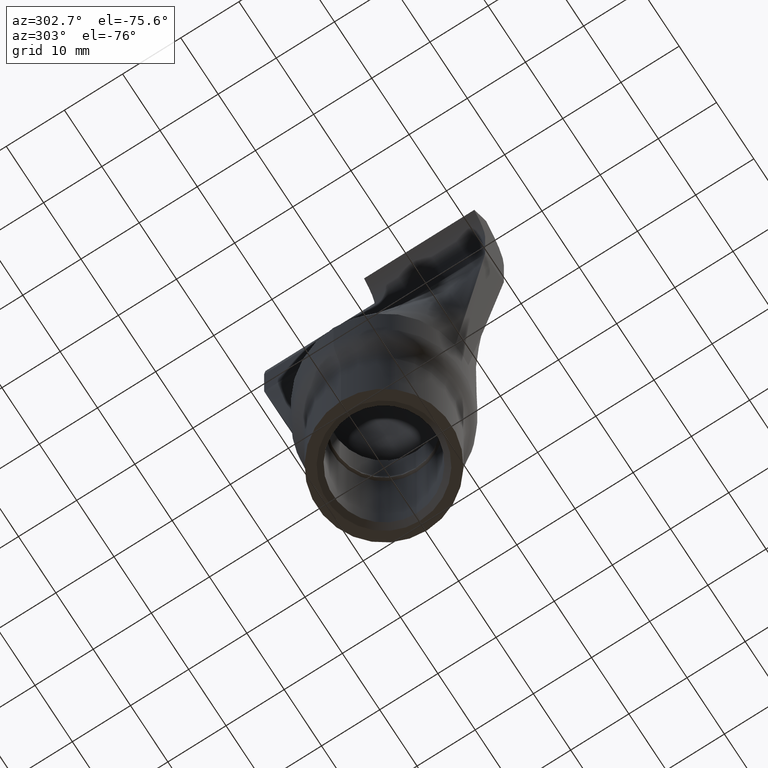
[diagram: clean part render]
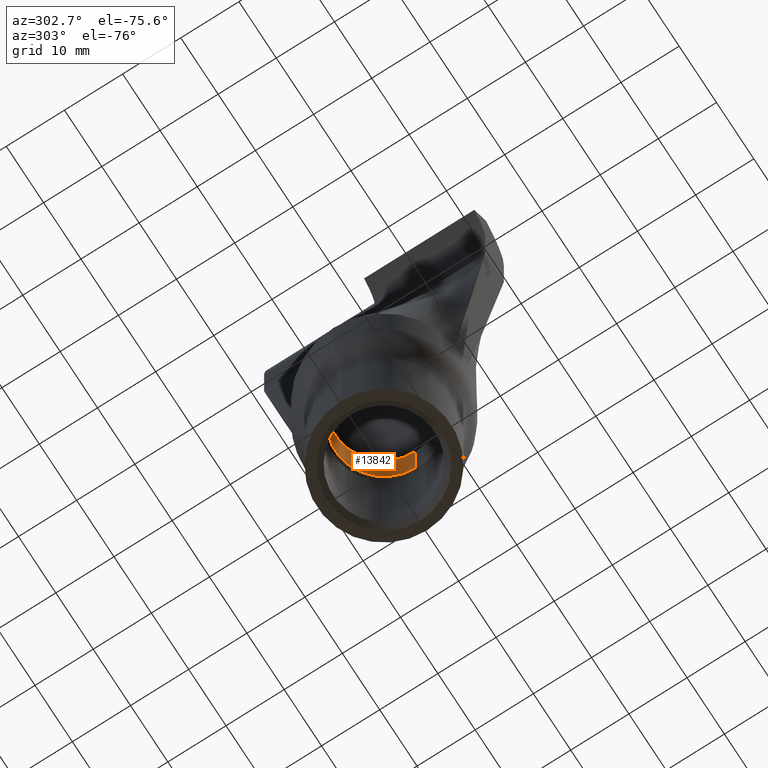
[diagram: same view with one face highlighted and labeled with its STEP entity id]
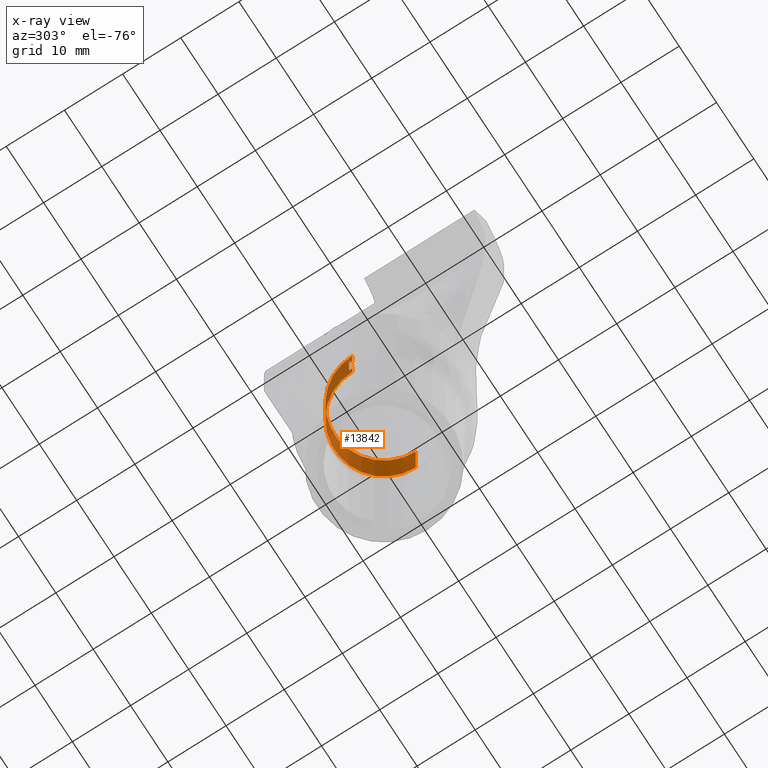
[diagram: x-ray of the same camera — body ghosted, the highlighted face saturated]
A machine part, auxiliary view. The second image highlights one B-rep face of the part: STEP entity #13842.
The next image is the same camera in x-ray: the body ghosted, the highlighted face saturated — about 27% of this face is hidden behind the body in this view.
In plain terms, the highlighted cylindrical surface (partial cylindrical patch) has radius 8.5 mm, axis along (-0, -0, -1).
Its self-contained STEP definition (entity closure, byte-faithful):
#20 = ORIENTED_EDGE ( 'NONE', *, *, #9149, .T. ) ;
#29 = DIRECTION ( 'NONE',  ( -1.000000000000000000, 0.0000000000000000000, 0.0000000000000000000 ) ) ;
#58 = LINE ( 'NONE', #6750, #7797 ) ;
#163 = CARTESIAN_POINT ( 'NONE',  ( -8.479483192157015700, 0.5902243589743589900, 32.19907823039964300 ) ) ;
#172 = CARTESIAN_POINT ( 'NONE',  ( 0.0000000000000000000, 0.0000000000000000000, 29.20661528969452500 ) ) ;
#174 = CARTESIAN_POINT ( 'NONE',  ( -8.479483192157015700, 0.5902243589743591000, 31.45907171998297300 ) ) ;
#215 = CARTESIAN_POINT ( 'NONE',  ( -8.481479456872302000, 0.5608085436698718700, 31.57864303408554500 ) ) ;
#275 = CARTESIAN_POINT ( 'NONE',  ( -8.486479229325372100, 0.4792392828525641200, 31.65909926405348400 ) ) ;
#297 = CARTESIAN_POINT ( 'NONE',  ( -8.499401722457394100, 0.1028478057476401400, 33.28867470588210200 ) ) ;
#315 = CARTESIAN_POINT ( 'NONE',  ( -8.479483192157015700, 0.5902243589743589900, 30.41822887142528100 ) ) ;
#330 = DIRECTION ( 'NONE',  ( 0.0000000000000000000, 0.0000000000000000000, 1.000000000000000000 ) ) ;
#402 = CARTESIAN_POINT ( 'NONE',  ( -8.497210503294940800, 0.2193038818387470200, 33.36365953212720100 ) ) ;
#432 = CARTESIAN_POINT ( 'NONE',  ( -8.480160711533111200, 0.5804140261267916000, 31.53050673908831000 ) ) ;
#437 = CARTESIAN_POINT ( 'NONE',  ( -8.500000000000003600, 6.762779025272351900E-012, 30.50113360573773100 ) ) ;
#445 = CARTESIAN_POINT ( 'NONE',  ( -8.500000000000000000, 0.0000000000000000000, 33.92841016148938800 ) ) ;
#508 = ORIENTED_EDGE ( 'NONE', *, *, #5080, .T. ) ;
#548 = CARTESIAN_POINT ( 'NONE',  ( -8.494191129356002200, 0.3141927083333333500, 30.86534926405348900 ) ) ;
#589 = EDGE_CURVE ( 'NONE', #12116, #2542, #5686, .T. ) ;
#680 = CARTESIAN_POINT ( 'NONE',  ( -8.483015446842321300, 0.5374991792275755100, 32.02600635375140600 ) ) ;
#718 = EDGE_CURVE ( 'NONE', #8975, #13866, #14810, .T. ) ;
#720 = DIRECTION ( 'NONE',  ( 0.0000000000000000000, 0.0000000000000000000, -1.000000000000000000 ) ) ;
#724 = CARTESIAN_POINT ( 'NONE',  ( -8.483687033552374900, 0.5271694365570300800, 29.49916056632813300 ) ) ;
#737 = B_SPLINE_CURVE_WITH_KNOTS ( 'NONE', 3,
 ( #174, #8821, #12756, #14018, #6590, #7364 ),
 .UNSPECIFIED., .F., .F.,
 ( 4, 2, 4 ),
 ( 7.040638946443416900E-018, 0.0001240070741866490700, 0.0002480141483732911000 ),
 .UNSPECIFIED. ) ;
#740 = ORIENTED_EDGE ( 'NONE', *, *, #15878, .T. ) ;
#804 = CARTESIAN_POINT ( 'NONE',  ( -8.494996246430542200, 0.2916140825320512900, 32.50373067430989900 ) ) ;
#808 = CARTESIAN_POINT ( 'NONE',  ( -8.479980198981492000, 0.5832255301945520300, 32.27879910119269600 ) ) ;
#828 = CARTESIAN_POINT ( 'NONE',  ( -8.492197443105327500, 0.3657511347656010000, 29.44196305711543400 ) ) ;
#849 = LINE ( 'NONE', #6390, #2004 ) ;
#860 = CARTESIAN_POINT ( 'NONE',  ( -8.479483192157015700, 0.5902243589743589900, 31.06171970676181700 ) ) ;
#879 = DIRECTION ( 'NONE',  ( -0.0000000000000000000, -0.0000000000000000000, -1.000000000000000000 ) ) ;
#890 = VERTEX_POINT ( 'NONE', #6737 ) ;
#899 = CARTESIAN_POINT ( 'NONE',  ( -8.479483192157015700, 0.5902243589743589900, 28.98591717270734900 ) ) ;
#922 = CARTESIAN_POINT ( 'NONE',  ( 0.0000000000000000000, 0.0000000000000000000, 30.11230439225861500 ) ) ;
#1019 = B_SPLINE_CURVE_WITH_KNOTS ( 'NONE', 3,
 ( #13750, #13967, #402, #10234, #9058, #297, #4065, #7748, #11283, #1658 ),
 .UNSPECIFIED., .F., .F.,
 ( 4, 2, 2, 2, 4 ),
 ( 0.0000000000000000000, 8.292506411967951900E-005, 0.0001658501282393590400, 0.0002487751923590385400, 0.0003317002564787180200 ),
 .UNSPECIFIED. ) ;
#1027 = VERTEX_POINT ( 'NONE', #10640 ) ;
#1046 = VERTEX_POINT ( 'NONE', #3394 ) ;
#1087 = EDGE_CURVE ( 'NONE', #890, #16018, #12921, .T. ) ;
#1119 = VERTEX_POINT ( 'NONE', #6295 ) ;
#1140 = CARTESIAN_POINT ( 'NONE',  ( 0.0000000000000000000, 0.0000000000000000000, 29.87824990507913400 ) ) ;
#1161 = CARTESIAN_POINT ( 'NONE',  ( -8.500000000000000000, -6.670557836684006300E-014, 33.06217110393816900 ) ) ;
#1183 = EDGE_CURVE ( 'NONE', #9605, #13118, #2801, .T. ) ;
#1184 = CARTESIAN_POINT ( 'NONE',  ( -8.485142786397080500, 0.5023463889126006400, 31.64177583249009400 ) ) ;
#1218 = CARTESIAN_POINT ( 'NONE',  ( -8.498677405913380100, 0.1499411558493589600, 32.88025311020734200 ) ) ;
#1240 = CARTESIAN_POINT ( 'NONE',  ( -8.483775554803971300, 0.5255267013534208300, 31.22446369412709500 ) ) ;
#1255 = CARTESIAN_POINT ( 'NONE',  ( -8.494836703831396100, 0.2962252103365384200, 28.76903516148939800 ) ) ;
#1327 = VERTEX_POINT ( 'NONE', #7088 ) ;
#1336 = CARTESIAN_POINT ( 'NONE',  ( -8.487100446449575800, 0.4681089743589743600, 33.85717618713042000 ) ) ;
#1396 = CARTESIAN_POINT ( 'NONE',  ( -8.486844861608497900, 0.4727201021634615500, 30.18353836661759000 ) ) ;
#1418 = ORIENTED_EDGE ( 'NONE', *, *, #3023, .T. ) ;
#1440 = CARTESIAN_POINT ( 'NONE',  ( -8.479483192157015700, 0.5902243589743589900, 30.41822887142528100 ) ) ;
#1566 = AXIS2_PLACEMENT_3D ( 'NONE', #14011, #10164, #6641 ) ;
#1586 = CIRCLE ( 'NONE', #12871, 8.500000000000000000 ) ;
#1590 = CARTESIAN_POINT ( 'NONE',  ( -8.500000000000000000, 7.368416582284240400E-012, 32.28198296471439500 ) ) ;
#1626 = ORIENTED_EDGE ( 'NONE', *, *, #11953, .T. ) ;
#1658 = CARTESIAN_POINT ( 'NONE',  ( -8.499780700595167100, 0.06105769230769231300, 33.15707978288362800 ) ) ;
#1681 = EDGE_CURVE ( 'NONE', #1027, #15162, #8558, .T. ) ;
#1685 = CARTESIAN_POINT ( 'NONE',  ( -8.499723886915157700, 0.07154744612980439000, 33.07086142735017400 ) ) ;
#1725 = CARTESIAN_POINT ( 'NONE',  ( 0.0000000000000000000, 0.0000000000000000000, 33.54171144354067000 ) ) ;
#1732 = CIRCLE ( 'NONE', #12057, 8.500000000000000000 ) ;
#1739 = EDGE_CURVE ( 'NONE', #1119, #890, #12618, .T. ) ;
#1808 = ORIENTED_EDGE ( 'NONE', *, *, #1739, .T. ) ;
#1829 = CARTESIAN_POINT ( 'NONE',  ( -8.500000000000000000, 0.0000000000000000000, 29.27784926405350100 ) ) ;
#1835 = VERTEX_POINT ( 'NONE', #11740 ) ;
#1914 = CARTESIAN_POINT ( 'NONE',  ( -8.485108901248310100, 0.5042416298607869100, 31.99275594139879100 ) ) ;
#1965 = ORIENTED_EDGE ( 'NONE', *, *, #6092, .T. ) ;
#1988 = VECTOR ( 'NONE', #7803, 1000.000000000000000 ) ;
#2004 = VECTOR ( 'NONE', #5205, 1000.000000000000000 ) ;
#2018 = CARTESIAN_POINT ( 'NONE',  ( 0.0000000000000000000, 0.0000000000000000000, 33.85717618713042000 ) ) ;
#2036 = DIRECTION ( 'NONE',  ( -0.0000000000000000000, -0.0000000000000000000, -1.000000000000000000 ) ) ;
#2039 = EDGE_CURVE ( 'NONE', #13797, #4972, #7162, .T. ) ;
#2076 = CARTESIAN_POINT ( 'NONE',  ( -8.492197443105334600, 0.3657511347656026700, 28.77032844173084000 ) ) ;
#2084 = ORIENTED_EDGE ( 'NONE', *, *, #3260, .T. ) ;
#2087 = EDGE_CURVE ( 'NONE', #9771, #11184, #4733, .T. ) ;
#2103 = DIRECTION ( 'NONE',  ( -0.0000000000000000000, -0.0000000000000000000, -1.000000000000000000 ) ) ;
#2169 = DIRECTION ( 'NONE',  ( 0.0000000000000000000, 0.0000000000000000000, 1.000000000000000000 ) ) ;
#2181 = CARTESIAN_POINT ( 'NONE',  ( -8.492503519309829900, 0.3584017388368203600, 33.43450192779323500 ) ) ;
#2196 = VERTEX_POINT ( 'NONE', #275 ) ;
#2201 = VECTOR ( 'NONE', #5503, 1000.000000000000000 ) ;
#2210 = DIRECTION ( 'NONE',  ( -1.000000000000000000, 0.0000000000000000000, 0.0000000000000000000 ) ) ;
#2218 = CARTESIAN_POINT ( 'NONE',  ( -8.484684339450360800, 0.5112472549043135500, 32.94140065515957600 ) ) ;
#2232 = ORIENTED_EDGE ( 'NONE', *, *, #718, .T. ) ;
#2234 = CARTESIAN_POINT ( 'NONE',  ( -8.480185388802407700, 0.5800480769230769200, 29.27784926405350100 ) ) ;
#2318 = CARTESIAN_POINT ( 'NONE',  ( -8.484696443628051200, 0.5098855734483831400, 31.63577454348882900 ) ) ;
#2325 = CARTESIAN_POINT ( 'NONE',  ( -8.480179459419845900, 0.5804816498223890300, 29.74431209384213300 ) ) ;
#2328 = CIRCLE ( 'NONE', #4481, 8.500000000000000000 ) ;
#2346 = VERTEX_POINT ( 'NONE', #6251 ) ;
#2407 = B_SPLINE_CURVE_WITH_KNOTS ( 'NONE', 3,
 ( #9640, #14558, #7149, #15985, #3479, #13479, #12134, #9684 ),
 .UNSPECIFIED., .F., .F.,
 ( 4, 2, 2, 4 ),
 ( 8.124888423650991900E-005, 0.0002770326821290870200, 0.0003749245810753818800, 0.0004728164800216767900 ),
 .UNSPECIFIED. ) ;
#2502 = CARTESIAN_POINT ( 'NONE',  ( -8.480185388802407700, 0.5800480769230769200, 36.00000000000000700 ) ) ;
#2517 = CARTESIAN_POINT ( 'NONE',  ( -8.485991252030348900, 0.4893840863557879000, 31.25270509874510000 ) ) ;
#2542 = VERTEX_POINT ( 'NONE', #8212 ) ;
#2547 = VECTOR ( 'NONE', #9999, 1000.000000000000000 ) ;
#2614 = DIRECTION ( 'NONE',  ( 0.0000000000000000000, 0.0000000000000000000, 1.000000000000000000 ) ) ;
#2654 = DIRECTION ( 'NONE',  ( -0.0000000000000000000, -0.0000000000000000000, -1.000000000000000000 ) ) ;
#2670 = CARTESIAN_POINT ( 'NONE',  ( -8.500000000000000000, 0.0000000000000000000, 36.00000000000000700 ) ) ;
#2718 = DIRECTION ( 'NONE',  ( 1.000000000000000000, 0.0000000000000000000, 0.0000000000000000000 ) ) ;
#2727 = EDGE_CURVE ( 'NONE', #11184, #15216, #13801, .T. ) ;
#2728 = VERTEX_POINT ( 'NONE', #13400 ) ;
#2734 = EDGE_CURVE ( 'NONE', #15627, #9006, #13242, .T. ) ;
#2740 = CARTESIAN_POINT ( 'NONE',  ( -8.479570877972568300, 0.5889646170001979800, 30.37249193316276300 ) ) ;
#2749 = CARTESIAN_POINT ( 'NONE',  ( 0.0000000000000000000, 0.0000000000000000000, 31.65909926405348400 ) ) ;
#2764 = VERTEX_POINT ( 'NONE', #10858 ) ;
#2801 = LINE ( 'NONE', #14789, #12100 ) ;
#2807 = CARTESIAN_POINT ( 'NONE',  ( -8.500000000000000000, 0.0000000000000000000, 36.00000000000000700 ) ) ;
#2818 = CARTESIAN_POINT ( 'NONE',  ( -8.487100446449575800, 0.4681089743589743600, 36.00000000000000700 ) ) ;
#2902 = EDGE_CURVE ( 'NONE', #14427, #6914, #11947, .T. ) ;
#2920 = AXIS2_PLACEMENT_3D ( 'NONE', #3864, #8894, #7540 ) ;
#2956 = CARTESIAN_POINT ( 'NONE',  ( -8.480185388802407700, 0.5800480769230769200, 31.73033323841245600 ) ) ;
#2958 = EDGE_CURVE ( 'NONE', #9571, #9279, #10909, .T. ) ;
#2973 = CARTESIAN_POINT ( 'NONE',  ( -8.486825607437223700, 0.4738938993073687500, 30.88389362358405100 ) ) ;
#3023 = EDGE_CURVE ( 'NONE', #6892, #9227, #5481, .T. ) ;
#3030 = CARTESIAN_POINT ( 'NONE',  ( -8.479483192157015700, 0.5902243589743589900, 31.06171970676181700 ) ) ;
#3031 = DIRECTION ( 'NONE',  ( 1.000000000000000000, 0.0000000000000000000, 0.0000000000000000000 ) ) ;
#3084 = DIRECTION ( 'NONE',  ( 0.0000000000000000000, 0.0000000000000000000, 1.000000000000000000 ) ) ;
#3161 = CARTESIAN_POINT ( 'NONE',  ( -8.493623146068744100, 0.3310263503638490300, 28.76913747179567000 ) ) ;
#3179 = VERTEX_POINT ( 'NONE', #7487 ) ;
#3255 = CARTESIAN_POINT ( 'NONE',  ( -8.462857728775784200, 0.7937499999999999600, 33.92841016148938800 ) ) ;
#3260 = EDGE_CURVE ( 'NONE', #13911, #3436, #12254, .T. ) ;
#3261 = DIRECTION ( 'NONE',  ( 0.0000000000000000000, 0.0000000000000000000, 1.000000000000000000 ) ) ;
#3272 = EDGE_CURVE ( 'NONE', #14296, #5337, #849, .T. ) ;
#3303 = CARTESIAN_POINT ( 'NONE',  ( -8.482691349306213300, 0.5425221017701253900, 32.97514874209599600 ) ) ;
#3314 = DIRECTION ( 'NONE',  ( 0.0000000000000000000, 0.0000000000000000000, -1.000000000000000000 ) ) ;
#3362 = CARTESIAN_POINT ( 'NONE',  ( -8.484803697663432200, 0.5091642619713417900, 29.85120586690009500 ) ) ;
#3375 = CARTESIAN_POINT ( 'NONE',  ( -8.500000000000000000, 0.0000000000000000000, 36.00000000000000700 ) ) ;
#3394 = CARTESIAN_POINT ( 'NONE',  ( -8.494996246430542200, 0.2916140825320512900, 30.72288131533553500 ) ) ;
#3436 = VERTEX_POINT ( 'NONE', #3472 ) ;
#3472 = CARTESIAN_POINT ( 'NONE',  ( -8.491199214571333100, 0.3866987179487179600, 33.54171144354067000 ) ) ;
#3479 = CARTESIAN_POINT ( 'NONE',  ( -8.498487702088645800, 0.1632994673914983700, 32.47849910441671300 ) ) ;
#3522 = CIRCLE ( 'NONE', #2920, 8.500000000000000000 ) ;
#3556 = VERTEX_POINT ( 'NONE', #7414 ) ;
#3570 = CARTESIAN_POINT ( 'NONE',  ( -8.482825508968099700, 0.5404387052635358800, 29.82030833191061000 ) ) ;
#3580 = B_SPLINE_CURVE_WITH_KNOTS ( 'NONE', 3,
 ( #7186, #12015, #9466, #3303, #2218, #12066 ),
 .UNSPECIFIED., .F., .F.,
 ( 4, 2, 4 ),
 ( 0.0000000000000000000, 0.0001352376568395545600, 0.0002704753136791091100 ),
 .UNSPECIFIED. ) ;
#3772 = CARTESIAN_POINT ( 'NONE',  ( -8.479715661751731300, 0.5869149535435074200, 31.10652028828628300 ) ) ;
#3782 = VECTOR ( 'NONE', #7770, 1000.000000000000000 ) ;
#3826 = CARTESIAN_POINT ( 'NONE',  ( -8.479483192157015700, 0.5902243589743589900, 31.06171970676181700 ) ) ;
#3835 = ORIENTED_EDGE ( 'NONE', *, *, #14251, .T. ) ;
#3854 = EDGE_CURVE ( 'NONE', #11377, #10367, #58, .T. ) ;
#3861 = CARTESIAN_POINT ( 'NONE',  ( -8.481947204133041000, 0.5538843024392459100, 30.57057832697389400 ) ) ;
#3864 = CARTESIAN_POINT ( 'NONE',  ( 0.0000000000000000000, 0.0000000000000000000, 30.86534926405348500 ) ) ;
#3867 = VERTEX_POINT ( 'NONE', #4327 ) ;
#3912 = CIRCLE ( 'NONE', #9833, 8.500000000000000000 ) ;
#3923 = LINE ( 'NONE', #2818, #12239 ) ;
#3937 = CARTESIAN_POINT ( 'NONE',  ( -8.500000000000000000, 0.0000000000000000000, 36.00000000000000700 ) ) ;
#3961 = CARTESIAN_POINT ( 'NONE',  ( -8.500000000000000000, 0.0000000000000000000, 36.00000000000000700 ) ) ;
#3965 = CARTESIAN_POINT ( 'NONE',  ( -8.486705837198366400, 0.4760103826608398900, 30.66092561982248600 ) ) ;
#3985 = CARTESIAN_POINT ( 'NONE',  ( -8.482744082052946100, 0.5417079164769170700, 30.24492812678851200 ) ) ;
#4019 = EDGE_CURVE ( 'NONE', #2196, #1027, #14601, .T. ) ;
#4038 = CARTESIAN_POINT ( 'NONE',  ( -8.486844861608497900, 0.4727201021634615500, 30.18353836661759000 ) ) ;
#4052 = CARTESIAN_POINT ( 'NONE',  ( 0.0000000000000000000, 0.0000000000000000000, 29.94948387943810500 ) ) ;
#4065 = CARTESIAN_POINT ( 'NONE',  ( -8.499564559658692200, 0.08667085488881323700, 33.26524903485159300 ) ) ;
#4074 = ORIENTED_EDGE ( 'NONE', *, *, #4684, .T. ) ;
#4105 = DIRECTION ( 'NONE',  ( 0.0000000000000000000, 0.0000000000000000000, 1.000000000000000000 ) ) ;
#4113 = CARTESIAN_POINT ( 'NONE',  ( -8.495558083713730100, 0.2747596153846154100, 32.84972426405349900 ) ) ;
#4134 = AXIS2_PLACEMENT_3D ( 'NONE', #1725, #6844, #8090 ) ;
#4156 = CARTESIAN_POINT ( 'NONE',  ( -8.479990857134810200, 0.5828851198220028600, 31.52039099440007800 ) ) ;
#4215 = CARTESIAN_POINT ( 'NONE',  ( -8.488551687240583700, 0.4421579804108304900, 30.87571623848014100 ) ) ;
#4236 = CARTESIAN_POINT ( 'NONE',  ( -8.479579454560934000, 0.5888414010810995000, 32.15299704278955100 ) ) ;
#4244 = LINE ( 'NONE', #12071, #7330 ) ;
#4266 = CARTESIAN_POINT ( 'NONE',  ( -8.479567625963389000, 0.5890113371275062000, 31.02955579360424200 ) ) ;
#4312 = VERTEX_POINT ( 'NONE', #1829 ) ;
#4327 = CARTESIAN_POINT ( 'NONE',  ( -8.480185388802407700, 0.5800480769230769200, 29.87824990507913400 ) ) ;
#4451 = AXIS2_PLACEMENT_3D ( 'NONE', #15807, #13458, #2210 ) ;
#4481 = AXIS2_PLACEMENT_3D ( 'NONE', #4052, #12697, #7684 ) ;
#4503 = EDGE_CURVE ( 'NONE', #6778, #7940, #10837, .T. ) ;
#4508 = LINE ( 'NONE', #13650, #1988 ) ;
#4517 = FACE_OUTER_BOUND ( 'NONE', #14377, .T. ) ;
#4550 = VERTEX_POINT ( 'NONE', #1336 ) ;
#4563 = CARTESIAN_POINT ( 'NONE',  ( -8.480185388802407700, 0.5800480769230769200, 29.20661528969452500 ) ) ;
#4580 = ORIENTED_EDGE ( 'NONE', *, *, #4627, .T. ) ;
#4617 = EDGE_CURVE ( 'NONE', #7325, #1835, #4508, .T. ) ;
#4624 = CARTESIAN_POINT ( 'NONE',  ( -8.486658214110580200, 0.4760591947115384600, 32.91284901365286000 ) ) ;
#4627 = EDGE_CURVE ( 'NONE', #8566, #11757, #11081, .T. ) ;
#4645 = EDGE_CURVE ( 'NONE', #2728, #1119, #1019, .T. ) ;
#4666 = DIRECTION ( 'NONE',  ( -0.0000000000000000000, -0.0000000000000000000, -1.000000000000000000 ) ) ;
#4684 = EDGE_CURVE ( 'NONE', #1046, #5145, #6075, .T. ) ;
#4693 = CARTESIAN_POINT ( 'NONE',  ( -8.486705837198366400, 0.4760103826608607100, 32.44177497879682200 ) ) ;
#4733 = CIRCLE ( 'NONE', #14585, 8.500000000000000000 ) ;
#4746 = ORIENTED_EDGE ( 'NONE', *, *, #6271, .T. ) ;
#4748 = DIRECTION ( 'NONE',  ( 1.000000000000000000, 0.0000000000000000000, 0.0000000000000000000 ) ) ;
#4808 = CARTESIAN_POINT ( 'NONE',  ( -8.479483192157015700, 0.5902243589743589900, 29.65755178809195400 ) ) ;
#4824 = EDGE_CURVE ( 'NONE', #4312, #15627, #5444, .T. ) ;
#4847 = CARTESIAN_POINT ( 'NONE',  ( -8.487100446449575800, 0.4681089743589743600, 33.54171144354067000 ) ) ;
#4905 = CARTESIAN_POINT ( 'NONE',  ( -8.483827146686817100, 0.5240963128470661500, 31.62273125698743900 ) ) ;
#4938 = EDGE_CURVE ( 'NONE', #4972, #5157, #6964, .T. ) ;
#4965 = ORIENTED_EDGE ( 'NONE', *, *, #5971, .T. ) ;
#4972 = VERTEX_POINT ( 'NONE', #899 ) ;
#4976 = DIRECTION ( 'NONE',  ( 1.000000000000000000, 0.0000000000000000000, 0.0000000000000000000 ) ) ;
#4992 = CARTESIAN_POINT ( 'NONE',  ( -8.500000000000000000, 4.846739782485406800E-012, 33.23292927816191900 ) ) ;
#5071 = DIRECTION ( 'NONE',  ( 1.000000000000000000, 0.0000000000000000000, 0.0000000000000000000 ) ) ;
#5078 = DIRECTION ( 'NONE',  ( 1.000000000000000000, 0.0000000000000000000, 0.0000000000000000000 ) ) ;
#5080 = EDGE_CURVE ( 'NONE', #9227, #11377, #15701, .T. ) ;
#5081 = CARTESIAN_POINT ( 'NONE',  ( 0.0000000000000000000, 0.0000000000000000000, 28.76903516148939800 ) ) ;
#5098 = CARTESIAN_POINT ( 'NONE',  ( -8.479980198981490200, 0.5832255301945423700, 30.49794974221835300 ) ) ;
#5127 = EDGE_CURVE ( 'NONE', #2764, #4312, #9517, .T. ) ;
#5145 = VERTEX_POINT ( 'NONE', #7519 ) ;
#5157 = VERTEX_POINT ( 'NONE', #1255 ) ;
#5183 = DIRECTION ( 'NONE',  ( -1.000000000000000000, 0.0000000000000000000, 0.0000000000000000000 ) ) ;
#5186 = CARTESIAN_POINT ( 'NONE',  ( -8.480626974015086400, 0.5735556883230006300, 31.55020253695830900 ) ) ;
#5205 = DIRECTION ( 'NONE',  ( -0.0000000000000000000, -0.0000000000000000000, -1.000000000000000000 ) ) ;
#5235 = CARTESIAN_POINT ( 'NONE',  ( 8.500000000000000000, 1.040949779275250100E-015, 36.00000000000000700 ) ) ;
#5239 = ORIENTED_EDGE ( 'NONE', *, *, #5818, .T. ) ;
#5254 = CARTESIAN_POINT ( 'NONE',  ( -8.486693867619592900, 0.4754231770833333100, 29.20661528969452500 ) ) ;
#5292 = CARTESIAN_POINT ( 'NONE',  ( -8.494996246430542200, 0.2916140825320512900, 30.72288131533553500 ) ) ;
#5300 = CARTESIAN_POINT ( 'NONE',  ( -8.479483192157015700, 0.5902243589743589900, 33.14642648761118700 ) ) ;
#5335 = EDGE_CURVE ( 'NONE', #5584, #4550, #15319, .T. ) ;
#5337 = VERTEX_POINT ( 'NONE', #8000 ) ;
#5348 = CARTESIAN_POINT ( 'NONE',  ( -8.470098706018868400, 0.7123397435897436100, 36.00000000000000700 ) ) ;
#5391 = CARTESIAN_POINT ( 'NONE',  ( -8.482028194910345300, 0.5526581910958345800, 30.94085136500276800 ) ) ;
#5444 = CIRCLE ( 'NONE', #10245, 8.500000000000000000 ) ;
#5467 = CARTESIAN_POINT ( 'NONE',  ( -8.480179459419840500, 0.5804816498223901400, 29.07267747845751400 ) ) ;
#5472 = VECTOR ( 'NONE', #11470, 1000.000000000000000 ) ;
#5481 = LINE ( 'NONE', #10432, #2201 ) ;
#5503 = DIRECTION ( 'NONE',  ( -0.0000000000000000000, -0.0000000000000000000, -1.000000000000000000 ) ) ;
#5514 = CARTESIAN_POINT ( 'NONE',  ( -8.494397136859058500, 0.3106560531570589600, 32.85081331555407000 ) ) ;
#5584 = VERTEX_POINT ( 'NONE', #11711 ) ;
#5615 = DIRECTION ( 'NONE',  ( -0.0000000000000000000, -0.0000000000000000000, -1.000000000000000000 ) ) ;
#5623 = CARTESIAN_POINT ( 'NONE',  ( -8.479483192157015700, 0.5902243589743589900, 29.65755178809195400 ) ) ;
#5633 = CARTESIAN_POINT ( 'NONE',  ( -8.494836703831396100, 0.2962252103365384200, 28.76903516148939800 ) ) ;
#5660 = VECTOR ( 'NONE', #11496, 1000.000000000000000 ) ;
#5664 = CIRCLE ( 'NONE', #1566, 8.500000000000000000 ) ;
#5686 = B_SPLINE_CURVE_WITH_KNOTS ( 'NONE', 3,
 ( #7905, #6589, #12753, #9155, #5514, #4113 ),
 .UNSPECIFIED., .F., .F.,
 ( 4, 2, 4 ),
 ( 0.0000000000000000000, 0.0001076988321503867600, 0.0002153976643007735300 ),
 .UNSPECIFIED. ) ;
#5718 = CARTESIAN_POINT ( 'NONE',  ( -8.493634513331347300, 0.3312826659756997700, 32.50261282770821200 ) ) ;
#5738 = CARTESIAN_POINT ( 'NONE',  ( -8.494836703831396100, 0.2962252103365384200, 29.44066977687400700 ) ) ;
#5749 = CARTESIAN_POINT ( 'NONE',  ( -8.483687033552364200, 0.5271694365570480700, 28.82752595094356400 ) ) ;
#5770 = CARTESIAN_POINT ( 'NONE',  ( -8.488500362509308100, 0.4434953891649560700, 32.46522750392826100 ) ) ;
#5776 = EDGE_CURVE ( 'NONE', #7940, #8178, #15092, .T. ) ;
#5778 = B_SPLINE_CURVE_WITH_KNOTS ( 'NONE', 3,
 ( #315, #2740, #6515, #3985, #11411, #4038 ),
 .UNSPECIFIED., .F., .F.,
 ( 4, 2, 4 ),
 ( 0.0000000000000000000, 0.0001369057803791750100, 0.0002738115607583500200 ),
 .UNSPECIFIED. ) ;
#5780 = CARTESIAN_POINT ( 'NONE',  ( -8.480185388802407700, 0.5800480769230769200, 36.00000000000000700 ) ) ;
#5793 = CARTESIAN_POINT ( 'NONE',  ( -8.488947092388954700, 0.4347051505194595700, 29.45205713151965200 ) ) ;
#5818 = EDGE_CURVE ( 'NONE', #10367, #14379, #2407, .T. ) ;
#5871 = ORIENTED_EDGE ( 'NONE', *, *, #7411, .T. ) ;
#5874 = CARTESIAN_POINT ( 'NONE',  ( -8.500000000000000000, 0.0000000000000000000, 26.71779788708134600 ) ) ;
#5886 = ORIENTED_EDGE ( 'NONE', *, *, #589, .T. ) ;
#5898 = DIRECTION ( 'NONE',  ( -1.000000000000000000, 0.0000000000000000000, 0.0000000000000000000 ) ) ;
#5956 = ORIENTED_EDGE ( 'NONE', *, *, #1087, .T. ) ;
#5962 = ORIENTED_EDGE ( 'NONE', *, *, #12467, .T. ) ;
#5971 = EDGE_CURVE ( 'NONE', #5157, #10943, #10110, .T. ) ;
#5996 = CARTESIAN_POINT ( 'NONE',  ( -8.486039581495893100, 0.4870246675373933700, 31.65343675413532400 ) ) ;
#6062 = EDGE_CURVE ( 'NONE', #1327, #5584, #9350, .T. ) ;
#6075 = B_SPLINE_CURVE_WITH_KNOTS ( 'NONE', 3,
 ( #7703, #8943, #11341, #8841, #3965, #14997, #3861, #5098, #7593, #1440 ),
 .UNSPECIFIED., .F., .F.,
 ( 4, 2, 2, 2, 4 ),
 ( 0.0000000000000000000, 0.0001179419498632520600, 0.0002358838997265041200, 0.0003538258495897561800, 0.0004717677994530082400 ),
 .UNSPECIFIED. ) ;
#6078 = VERTEX_POINT ( 'NONE', #11427 ) ;
#6084 = CARTESIAN_POINT ( 'NONE',  ( -8.499989443516906100, 0.02936300419497676900, 32.98585731960409400 ) ) ;
#6089 = CARTESIAN_POINT ( 'NONE',  ( -8.498967599328764800, 0.1350009910133241900, 33.40195735217355400 ) ) ;
#6092 = EDGE_CURVE ( 'NONE', #13038, #6892, #5664, .T. ) ;
#6100 = ORIENTED_EDGE ( 'NONE', *, *, #5776, .T. ) ;
#6105 = AXIS2_PLACEMENT_3D ( 'NONE', #172, #330, #5078 ) ;
#6171 = CARTESIAN_POINT ( 'NONE',  ( -8.488072375472446800, 0.4501414763621794900, 31.27446760339643100 ) ) ;
#6199 = AXIS2_PLACEMENT_3D ( 'NONE', #13747, #2614, #2718 ) ;
#6251 = CARTESIAN_POINT ( 'NONE',  ( -8.480185388802407700, 0.5800480769230769200, 29.94948387943810500 ) ) ;
#6271 = EDGE_CURVE ( 'NONE', #4550, #13911, #3923, .T. ) ;
#6295 = CARTESIAN_POINT ( 'NONE',  ( -8.499780700595167100, 0.06105769230769231300, 33.15707978288362800 ) ) ;
#6320 = ORIENTED_EDGE ( 'NONE', *, *, #1681, .T. ) ;
#6380 = EDGE_CURVE ( 'NONE', #2542, #2728, #7763, .T. ) ;
#6388 = VERTEX_POINT ( 'NONE', #5300 ) ;
#6390 = CARTESIAN_POINT ( 'NONE',  ( -8.480185388802407700, 0.5800480769230769200, 36.00000000000000700 ) ) ;
#6423 = DIRECTION ( 'NONE',  ( 0.0000000000000000000, 0.0000000000000000000, 1.000000000000000000 ) ) ;
#6445 = AXIS2_PLACEMENT_3D ( 'NONE', #8384, #2169, #5898 ) ;
#6447 = VERTEX_POINT ( 'NONE', #445 ) ;
#6464 = CARTESIAN_POINT ( 'NONE',  ( -8.479483192157015700, 0.5902243589743589900, 33.14642648761118700 ) ) ;
#6477 = CARTESIAN_POINT ( 'NONE',  ( -8.481183291630360400, 0.5652876469997306600, 31.56926974119644300 ) ) ;
#6515 = CARTESIAN_POINT ( 'NONE',  ( -8.480119392051356900, 0.5813516362173504200, 30.32657076100071000 ) ) ;
#6540 = CIRCLE ( 'NONE', #13096, 8.500000000000000000 ) ;
#6575 = CARTESIAN_POINT ( 'NONE',  ( -8.480882653931068700, 0.5697751905678009000, 31.55987989013871700 ) ) ;
#6589 = CARTESIAN_POINT ( 'NONE',  ( -8.488285231355142500, 0.4470545259299468800, 32.89160039056091000 ) ) ;
#6590 = CARTESIAN_POINT ( 'NONE',  ( -8.485987481615298500, 0.4894551830166524700, 31.28862591679105200 ) ) ;
#6641 = DIRECTION ( 'NONE',  ( -1.000000000000000000, 0.0000000000000000000, 0.0000000000000000000 ) ) ;
#6643 = ORIENTED_EDGE ( 'NONE', *, *, #14102, .T. ) ;
#6658 = DIRECTION ( 'NONE',  ( 1.000000000000000000, 0.0000000000000000000, 0.0000000000000000000 ) ) ;
#6692 = CARTESIAN_POINT ( 'NONE',  ( -8.492998722693128500, 0.3464293892929673500, 30.86550621866203100 ) ) ;
#6737 = CARTESIAN_POINT ( 'NONE',  ( -8.498026101624455800, 0.1831730769230769100, 32.94353686421375500 ) ) ;
#6750 = CARTESIAN_POINT ( 'NONE',  ( -8.500000000000000000, 0.0000000000000000000, 36.00000000000000700 ) ) ;
#6778 = VERTEX_POINT ( 'NONE', #10089 ) ;
#6821 = VECTOR ( 'NONE', #4105, 1000.000000000000000 ) ;
#6828 = CARTESIAN_POINT ( 'NONE',  ( -8.480206313372150400, 0.5801356062843481300, 32.10673138225234200 ) ) ;
#6844 = DIRECTION ( 'NONE',  ( 0.0000000000000000000, 0.0000000000000000000, 1.000000000000000000 ) ) ;
#6850 = ORIENTED_EDGE ( 'NONE', *, *, #4824, .T. ) ;
#6852 = EDGE_CURVE ( 'NONE', #5145, #9771, #5778, .T. ) ;
#6866 = DIRECTION ( 'NONE',  ( -0.0000000000000000000, -0.0000000000000000000, -1.000000000000000000 ) ) ;
#6888 = CIRCLE ( 'NONE', #10289, 8.500000000000000000 ) ;
#6892 = VERTEX_POINT ( 'NONE', #10307 ) ;
#6914 = VERTEX_POINT ( 'NONE', #12959 ) ;
#6964 = B_SPLINE_CURVE_WITH_KNOTS ( 'NONE', 3,
 ( #8123, #10726, #15526, #13158, #5749, #9525, #13106, #2076, #3161, #5633 ),
 .UNSPECIFIED., .F., .F.,
 ( 4, 2, 2, 2, 4 ),
 ( 0.0000000000000000000, 0.0001037206820514623000, 0.0002074413641029245900, 0.0003111620461543868700, 0.0004148827282058491800 ),
 .UNSPECIFIED. ) ;
#6973 = CARTESIAN_POINT ( 'NONE',  ( -8.486693867619592900, 0.4754231770833333100, 29.87824990507913400 ) ) ;
#6980 = CARTESIAN_POINT ( 'NONE',  ( -8.500000000000000000, 0.0000000000000000000, 33.85717618713042000 ) ) ;
#7065 = CARTESIAN_POINT ( 'NONE',  ( -8.498264861230756800, 0.1720962014322283400, 32.92244310131730600 ) ) ;
#7086 = EDGE_CURVE ( 'NONE', #15162, #9106, #737, .T. ) ;
#7088 = CARTESIAN_POINT ( 'NONE',  ( -8.470098706018868400, 0.7123397435897436100, 33.54171144354067000 ) ) ;
#7139 = ORIENTED_EDGE ( 'NONE', *, *, #4617, .T. ) ;
#7145 = B_SPLINE_CURVE_WITH_KNOTS ( 'NONE', 3,
 ( #15700, #5718, #14480, #5770, #4693, #10753, #8203, #808, #15746, #9554 ),
 .UNSPECIFIED., .F., .F.,
 ( 4, 2, 2, 2, 4 ),
 ( 0.0000000000000000000, 0.0001179419498632711700, 0.0002358838997265423400, 0.0003538258495898135300, 0.0004717677994530846800 ),
 .UNSPECIFIED. ) ;
#7149 = CARTESIAN_POINT ( 'NONE',  ( -8.499967968613557200, 0.05654038433131335800, 32.40176276560100600 ) ) ;
#7162 = B_SPLINE_CURVE_WITH_KNOTS ( 'NONE', 3,
 ( #5254, #12887, #9000, #5467, #7860, #13908 ),
 .UNSPECIFIED., .F., .F.,
 ( 4, 2, 4 ),
 ( 0.0000000000000000000, 0.0001296211526491669700, 0.0002592423052983339500 ),
 .UNSPECIFIED. ) ;
#7186 = CARTESIAN_POINT ( 'NONE',  ( -8.479483192157015700, 0.5902243589743589900, 33.14642648761118700 ) ) ;
#7228 = CARTESIAN_POINT ( 'NONE',  ( -8.480185388802407700, 0.5800480769230769200, 36.00000000000000700 ) ) ;
#7303 = DIRECTION ( 'NONE',  ( 1.000000000000000000, 0.0000000000000000000, 0.0000000000000000000 ) ) ;
#7322 = CARTESIAN_POINT ( 'NONE',  ( -8.500000000000000000, 0.01016114168622177100, 33.02279611027420000 ) ) ;
#7325 = VERTEX_POINT ( 'NONE', #3255 ) ;
#7330 = VECTOR ( 'NONE', #4666, 1000.000000000000000 ) ;
#7364 = CARTESIAN_POINT ( 'NONE',  ( -8.488072375472446800, 0.4501414763621794900, 31.27446760339643100 ) ) ;
#7386 = VECTOR ( 'NONE', #2036, 1000.000000000000000 ) ;
#7411 = EDGE_CURVE ( 'NONE', #6078, #7634, #9157, .T. ) ;
#7414 = CARTESIAN_POINT ( 'NONE',  ( -8.491199214571333100, 0.3866987179487179600, 33.85717618713042000 ) ) ;
#7440 = CARTESIAN_POINT ( 'NONE',  ( -8.495104815767705400, 0.2884339943910256300, 33.43994862302785300 ) ) ;
#7475 = EDGE_CURVE ( 'NONE', #3867, #6078, #13191, .T. ) ;
#7487 = CARTESIAN_POINT ( 'NONE',  ( -8.500000000000000000, -6.670557836684006300E-014, 33.06217110393816900 ) ) ;
#7489 = CARTESIAN_POINT ( 'NONE',  ( -8.499999999999996400, 0.007906643913468501900, 33.26334215820581600 ) ) ;
#7493 = ORIENTED_EDGE ( 'NONE', *, *, #3854, .T. ) ;
#7496 = ORIENTED_EDGE ( 'NONE', *, *, #7475, .T. ) ;
#7519 = CARTESIAN_POINT ( 'NONE',  ( -8.479483192157015700, 0.5902243589743589900, 30.41822887142528100 ) ) ;
#7540 = DIRECTION ( 'NONE',  ( 1.000000000000000000, 0.0000000000000000000, 0.0000000000000000000 ) ) ;
#7568 = CIRCLE ( 'NONE', #13685, 8.500000000000000000 ) ;
#7593 = CARTESIAN_POINT ( 'NONE',  ( -8.479562570538242000, 0.5890839661064928300, 30.45805084210840600 ) ) ;
#7634 = VERTEX_POINT ( 'NONE', #4808 ) ;
#7653 = CARTESIAN_POINT ( 'NONE',  ( 0.0000000000000000000, 0.0000000000000000000, 33.92841016148938800 ) ) ;
#7684 = DIRECTION ( 'NONE',  ( -1.000000000000000000, 0.0000000000000000000, 0.0000000000000000000 ) ) ;
#7703 = CARTESIAN_POINT ( 'NONE',  ( -8.494996246430542200, 0.2916140825320512900, 30.72288131533553500 ) ) ;
#7717 = EDGE_CURVE ( 'NONE', #13866, #14296, #7568, .T. ) ;
#7730 = CARTESIAN_POINT ( 'NONE',  ( -8.500000000000003600, 6.762779025272351900E-012, 30.50113360573773100 ) ) ;
#7748 = CARTESIAN_POINT ( 'NONE',  ( -8.499752224635273000, 0.06573933906688944600, 33.21336728931246500 ) ) ;
#7761 = CARTESIAN_POINT ( 'NONE',  ( -8.480066927438056000, 0.5820699186815302400, 33.23393384573623900 ) ) ;
#7763 = LINE ( 'NONE', #10115, #14179 ) ;
#7770 = DIRECTION ( 'NONE',  ( -0.0000000000000000000, -0.0000000000000000000, -1.000000000000000000 ) ) ;
#7797 = VECTOR ( 'NONE', #6866, 1000.000000000000000 ) ;
#7803 = DIRECTION ( 'NONE',  ( -0.0000000000000000000, -0.0000000000000000000, -1.000000000000000000 ) ) ;
#7822 = CARTESIAN_POINT ( 'NONE',  ( -8.482514160824592900, 0.5452467289887309400, 33.31231353034230800 ) ) ;
#7831 = ORIENTED_EDGE ( 'NONE', *, *, #2902, .T. ) ;
#7855 = ORIENTED_EDGE ( 'NONE', *, *, #15283, .T. ) ;
#7860 = CARTESIAN_POINT ( 'NONE',  ( -8.479580932071218800, 0.5888201743671155300, 29.02938457970159500 ) ) ;
#7862 = DIRECTION ( 'NONE',  ( 0.0000000000000000000, 0.0000000000000000000, -1.000000000000000000 ) ) ;
#7905 = CARTESIAN_POINT ( 'NONE',  ( -8.486658214110580200, 0.4760591947115384600, 32.91284901365286000 ) ) ;
#7927 = VECTOR ( 'NONE', #10174, 1000.000000000000000 ) ;
#7940 = VERTEX_POINT ( 'NONE', #9295 ) ;
#7989 = ORIENTED_EDGE ( 'NONE', *, *, #14041, .T. ) ;
#8000 = CARTESIAN_POINT ( 'NONE',  ( -8.480185388802407700, 0.5800480769230769200, 31.65909926405348400 ) ) ;
#8072 = DIRECTION ( 'NONE',  ( -1.000000000000000000, 0.0000000000000000000, 0.0000000000000000000 ) ) ;
#8090 = DIRECTION ( 'NONE',  ( 1.000000000000000000, 0.0000000000000000000, 0.0000000000000000000 ) ) ;
#8109 = CIRCLE ( 'NONE', #15454, 8.500000000000000000 ) ;
#8123 = CARTESIAN_POINT ( 'NONE',  ( -8.479483192157015700, 0.5902243589743589900, 28.98591717270734900 ) ) ;
#8178 = VERTEX_POINT ( 'NONE', #8629 ) ;
#8203 = CARTESIAN_POINT ( 'NONE',  ( -8.481947204133039300, 0.5538843024392456900, 32.35142768594823800 ) ) ;
#8204 = CARTESIAN_POINT ( 'NONE',  ( -8.498677405913380100, 0.1499411558493589600, 32.88025311020734200 ) ) ;
#8212 = CARTESIAN_POINT ( 'NONE',  ( -8.495558083713730100, 0.2747596153846154100, 32.84972426405349900 ) ) ;
#8242 = DIRECTION ( 'NONE',  ( -0.0000000000000000000, -0.0000000000000000000, -1.000000000000000000 ) ) ;
#8325 = ORIENTED_EDGE ( 'NONE', *, *, #15234, .T. ) ;
#8352 = VERTEX_POINT ( 'NONE', #12398 ) ;
#8384 = CARTESIAN_POINT ( 'NONE',  ( 0.0000000000000000000, 0.0000000000000000000, 26.71779788708134600 ) ) ;
#8422 = CARTESIAN_POINT ( 'NONE',  ( 0.0000000000000000000, 0.0000000000000000000, 36.00000000000000700 ) ) ;
#8445 = CARTESIAN_POINT ( 'NONE',  ( 0.0000000000000000000, 0.0000000000000000000, 32.64619862302785700 ) ) ;
#8481 = CARTESIAN_POINT ( 'NONE',  ( -8.482974376390771500, 0.5379005614367411400, 31.60950035682754600 ) ) ;
#8551 = CARTESIAN_POINT ( 'NONE',  ( -8.479572648734853500, 0.5889391772690290000, 29.62269697261832100 ) ) ;
#8558 = B_SPLINE_CURVE_WITH_KNOTS ( 'NONE', 3,
 ( #215, #6477, #6575, #5186, #12693, #432, #4156, #15130, #11528, #13841 ),
 .UNSPECIFIED., .F., .F.,
 ( 4, 3, 3, 4 ),
 ( 7.410741937918042400E-018, 3.117817025858605700E-005, 6.245937455627861800E-005, 0.0001246190267387575500 ),
 .UNSPECIFIED. ) ;
#8566 = VERTEX_POINT ( 'NONE', #14244 ) ;
#8568 = CIRCLE ( 'NONE', #4134, 8.500000000000000000 ) ;
#8589 = CARTESIAN_POINT ( 'NONE',  ( -8.486479229325372100, 0.4792392828525641200, 31.65909926405348400 ) ) ;
#8624 = CARTESIAN_POINT ( 'NONE',  ( -8.496191888543016500, 0.2564169736923560000, 33.43903761305311700 ) ) ;
#8629 = CARTESIAN_POINT ( 'NONE',  ( -8.486317120906141700, 0.4821013621794871800, 33.37316677206632000 ) ) ;
#8729 = AXIS2_PLACEMENT_3D ( 'NONE', #13174, #9543, #10844 ) ;
#8798 = ORIENTED_EDGE ( 'NONE', *, *, #6852, .T. ) ;
#8800 = CARTESIAN_POINT ( 'NONE',  ( -8.480650067655322000, 0.5732550015729533900, 31.14884941807950400 ) ) ;
#8821 = CARTESIAN_POINT ( 'NONE',  ( -8.479581556319089900, 0.5888112060836856500, 31.41730676020639000 ) ) ;
#8841 = CARTESIAN_POINT ( 'NONE',  ( -8.488500362509308100, 0.4434953891649182600, 30.68437814495387500 ) ) ;
#8862 = VERTEX_POINT ( 'NONE', #5738 ) ;
#8893 = CARTESIAN_POINT ( 'NONE',  ( 8.500000000000000000, 1.040949779275250100E-015, 26.71779788708134600 ) ) ;
#8894 = DIRECTION ( 'NONE',  ( 0.0000000000000000000, 0.0000000000000000000, 1.000000000000000000 ) ) ;
#8918 = CARTESIAN_POINT ( 'NONE',  ( -8.500000000000000000, 0.0000000000000000000, 28.76903516148939800 ) ) ;
#8926 = EDGE_CURVE ( 'NONE', #7634, #8862, #12029, .T. ) ;
#8943 = CARTESIAN_POINT ( 'NONE',  ( -8.493634513331352700, 0.3312826659756942800, 30.72176346873385100 ) ) ;
#8975 = VERTEX_POINT ( 'NONE', #14706 ) ;
#9000 = CARTESIAN_POINT ( 'NONE',  ( -8.482825508968096200, 0.5404387052635429800, 29.14867371652601200 ) ) ;
#9006 = VERTEX_POINT ( 'NONE', #4563 ) ;
#9044 = B_SPLINE_CURVE_WITH_KNOTS ( 'NONE', 3,
 ( #10616, #4236, #6828, #680, #1914, #10560 ),
 .UNSPECIFIED., .F., .F.,
 ( 4, 2, 4 ),
 ( 0.0000000000000000000, 0.0001369810280124518100, 0.0002739620560249036200 ),
 .UNSPECIFIED. ) ;
#9058 = CARTESIAN_POINT ( 'NONE',  ( -8.498817502025271900, 0.1432074653352685700, 33.32811221038179600 ) ) ;
#9088 = CARTESIAN_POINT ( 'NONE',  ( -8.499774672623065200, 0.06189684031711426700, 33.11381366174717300 ) ) ;
#9092 = ORIENTED_EDGE ( 'NONE', *, *, #4019, .T. ) ;
#9101 = CIRCLE ( 'NONE', #8729, 8.500000000000000000 ) ;
#9106 = VERTEX_POINT ( 'NONE', #6171 ) ;
#9140 = CARTESIAN_POINT ( 'NONE',  ( -8.498026101624455800, 0.1831730769230769100, 32.94353686421375500 ) ) ;
#9149 = EDGE_CURVE ( 'NONE', #11757, #2346, #2328, .T. ) ;
#9155 = CARTESIAN_POINT ( 'NONE',  ( -8.492994980743876700, 0.3466969713684287500, 32.85453777922217000 ) ) ;
#9157 = B_SPLINE_CURVE_WITH_KNOTS ( 'NONE', 3,
 ( #6973, #3362, #3570, #2325, #10871, #12273 ),
 .UNSPECIFIED., .F., .F.,
 ( 4, 2, 4 ),
 ( 0.0000000000000000000, 0.0001296211526491613600, 0.0002592423052983227200 ),
 .UNSPECIFIED. ) ;
#9166 = ORIENTED_EDGE ( 'NONE', *, *, #13128, .T. ) ;
#9172 = EDGE_CURVE ( 'NONE', #10219, #11772, #13927, .T. ) ;
#9190 = EDGE_CURVE ( 'NONE', #9279, #1046, #11831, .T. ) ;
#9227 = VERTEX_POINT ( 'NONE', #11319 ) ;
#9279 = VERTEX_POINT ( 'NONE', #437 ) ;
#9280 = LINE ( 'NONE', #3961, #7927 ) ;
#9295 = CARTESIAN_POINT ( 'NONE',  ( -8.495104815767705400, 0.2884339943910256300, 33.43994862302785300 ) ) ;
#9335 = B_SPLINE_CURVE_WITH_KNOTS ( 'NONE', 3,
 ( #1218, #15840, #14572, #6084, #7322, #1161 ),
 .UNSPECIFIED., .F., .F.,
 ( 4, 2, 4 ),
 ( 0.0000000000000000000, 0.0001201109754078962400, 0.0002402219508157924900 ),
 .UNSPECIFIED. ) ;
#9350 = LINE ( 'NONE', #5348, #6821 ) ;
#9359 = CARTESIAN_POINT ( 'NONE',  ( -8.460924122997537800, 0.8141025641025641000, 31.96438772559195100 ) ) ;
#9370 = DIRECTION ( 'NONE',  ( -1.000000000000000000, 0.0000000000000000000, 0.0000000000000000000 ) ) ;
#9375 = CARTESIAN_POINT ( 'NONE',  ( -8.494836703831396100, 0.2962252103365384200, 29.44066977687400700 ) ) ;
#9385 = CARTESIAN_POINT ( 'NONE',  ( -8.487909160825008600, 0.4540770571669606700, 33.39403694807697300 ) ) ;
#9466 = CARTESIAN_POINT ( 'NONE',  ( -8.480104069352050200, 0.5815648987536780100, 33.05586894771171600 ) ) ;
#9498 = DIRECTION ( 'NONE',  ( 1.000000000000000000, 0.0000000000000000000, 0.0000000000000000000 ) ) ;
#9517 = LINE ( 'NONE', #15873, #2547 ) ;
#9525 = CARTESIAN_POINT ( 'NONE',  ( -8.487109964079151000, 0.4688472626909899700, 28.79008753451918100 ) ) ;
#9543 = DIRECTION ( 'NONE',  ( 0.0000000000000000000, 0.0000000000000000000, 1.000000000000000000 ) ) ;
#9554 = CARTESIAN_POINT ( 'NONE',  ( -8.479483192157015700, 0.5902243589743589900, 32.19907823039964300 ) ) ;
#9571 = VERTEX_POINT ( 'NONE', #14535 ) ;
#9587 = CARTESIAN_POINT ( 'NONE',  ( -8.495104815767705400, 0.2884339943910256300, 33.43994862302785300 ) ) ;
#9605 = VERTEX_POINT ( 'NONE', #9359 ) ;
#9624 = DIRECTION ( 'NONE',  ( 0.0000000000000000000, 0.0000000000000000000, 1.000000000000000000 ) ) ;
#9640 = CARTESIAN_POINT ( 'NONE',  ( -8.500000000000000000, 7.368416582284240400E-012, 32.28198296471439500 ) ) ;
#9684 = CARTESIAN_POINT ( 'NONE',  ( -8.494996246430542200, 0.2916140825320512900, 32.50373067430989900 ) ) ;
#9771 = VERTEX_POINT ( 'NONE', #1396 ) ;
#9805 = CARTESIAN_POINT ( 'NONE',  ( -8.499816919043416500, 0.05882496602535931100, 33.34424445376239300 ) ) ;
#9823 = CARTESIAN_POINT ( 'NONE',  ( -8.485588686528579700, 0.4948146809760971000, 31.64777117002103800 ) ) ;
#9833 = AXIS2_PLACEMENT_3D ( 'NONE', #922, #13292, #9498 ) ;
#9866 = ORIENTED_EDGE ( 'NONE', *, *, #2727, .T. ) ;
#9895 = DIRECTION ( 'NONE',  ( 0.0000000000000000000, 0.0000000000000000000, 1.000000000000000000 ) ) ;
#9940 = ORIENTED_EDGE ( 'NONE', *, *, #11679, .T. ) ;
#9999 = DIRECTION ( 'NONE',  ( -0.0000000000000000000, -0.0000000000000000000, -1.000000000000000000 ) ) ;
#10016 = B_SPLINE_CURVE_WITH_KNOTS ( 'NONE', 3,
 ( #12521, #12732, #7822, #7761, #10304, #6464 ),
 .UNSPECIFIED., .F., .F.,
 ( 4, 2, 4 ),
 ( 0.0000000000000000000, 0.0001305067733995744300, 0.0002610135467991488600 ),
 .UNSPECIFIED. ) ;
#10019 = CARTESIAN_POINT ( 'NONE',  ( -8.497093972115608900, 0.2242766961869093500, 33.43546168593302800 ) ) ;
#10048 = CARTESIAN_POINT ( 'NONE',  ( -8.499999999999985800, 0.01659438820008870400, 30.56452017493946000 ) ) ;
#10049 = AXIS2_PLACEMENT_3D ( 'NONE', #5081, #9895, #4976 ) ;
#10053 = EDGE_CURVE ( 'NONE', #13118, #8975, #9101, .T. ) ;
#10063 = ORIENTED_EDGE ( 'NONE', *, *, #2958, .T. ) ;
#10089 = CARTESIAN_POINT ( 'NONE',  ( -8.500000000000000000, 4.846739782485406800E-012, 33.23292927816191900 ) ) ;
#10102 = DIRECTION ( 'NONE',  ( -0.0000000000000000000, -0.0000000000000000000, -1.000000000000000000 ) ) ;
#10107 = CARTESIAN_POINT ( 'NONE',  ( -8.499967968613557200, 0.05654038433025970800, 30.62091340662544400 ) ) ;
#10110 = CIRCLE ( 'NONE', #10049, 8.500000000000000000 ) ;
#10115 = CARTESIAN_POINT ( 'NONE',  ( -8.495558083713730100, 0.2747596153846154100, 36.00000000000000700 ) ) ;
#10164 = DIRECTION ( 'NONE',  ( 0.0000000000000000000, 0.0000000000000000000, -1.000000000000000000 ) ) ;
#10174 = DIRECTION ( 'NONE',  ( -0.0000000000000000000, -0.0000000000000000000, -1.000000000000000000 ) ) ;
#10208 = CARTESIAN_POINT ( 'NONE',  ( -8.491199214571333100, 0.3866987179487179600, 36.00000000000000700 ) ) ;
#10210 = CARTESIAN_POINT ( 'NONE',  ( -8.499780700595167100, 0.06105769230769231300, 33.15707978288362800 ) ) ;
#10219 = VERTEX_POINT ( 'NONE', #14938 ) ;
#10234 = CARTESIAN_POINT ( 'NONE',  ( -8.498396531363361800, 0.1671434282482064100, 33.34344009055590200 ) ) ;
#10243 = ORIENTED_EDGE ( 'NONE', *, *, #6380, .T. ) ;
#10245 = AXIS2_PLACEMENT_3D ( 'NONE', #11607, #7862, #15365 ) ;
#10267 = EDGE_CURVE ( 'NONE', #10622, #6778, #9280, .T. ) ;
#10289 = AXIS2_PLACEMENT_3D ( 'NONE', #10548, #720, #9370 ) ;
#10304 = CARTESIAN_POINT ( 'NONE',  ( -8.479576208107220100, 0.5888880413955094300, 33.19014207574161900 ) ) ;
#10307 = CARTESIAN_POINT ( 'NONE',  ( -8.460924122997537800, 0.8141025641025641000, 32.71743259738683900 ) ) ;
#10317 = LINE ( 'NONE', #2502, #14185 ) ;
#10320 = CARTESIAN_POINT ( 'NONE',  ( -8.499276713887823600, 0.1127853341883241600, 32.99564704151475800 ) ) ;
#10350 = CARTESIAN_POINT ( 'NONE',  ( 0.0000000000000000000, 0.0000000000000000000, 29.44066977687400700 ) ) ;
#10367 = VERTEX_POINT ( 'NONE', #1590 ) ;
#10432 = CARTESIAN_POINT ( 'NONE',  ( -8.460924122997537800, 0.8141025641025641000, 36.00000000000000700 ) ) ;
#10434 = CARTESIAN_POINT ( 'NONE',  ( 0.0000000000000000000, 0.0000000000000000000, 33.85717618713042000 ) ) ;
#10535 = EDGE_CURVE ( 'NONE', #3556, #10622, #8109, .T. ) ;
#10548 = CARTESIAN_POINT ( 'NONE',  ( 0.0000000000000000000, 0.0000000000000000000, 31.96438772559195100 ) ) ;
#10549 = VERTEX_POINT ( 'NONE', #15624 ) ;
#10560 = CARTESIAN_POINT ( 'NONE',  ( -8.487117980360270800, 0.4677909655448718200, 31.96438772559195100 ) ) ;
#10597 = ORIENTED_EDGE ( 'NONE', *, *, #3272, .T. ) ;
#10609 = DIRECTION ( 'NONE',  ( 1.000000000000000000, 0.0000000000000000000, 0.0000000000000000000 ) ) ;
#10616 = CARTESIAN_POINT ( 'NONE',  ( -8.479483192157015700, 0.5902243589743589900, 32.19907823039964300 ) ) ;
#10622 = VERTEX_POINT ( 'NONE', #6980 ) ;
#10631 = EDGE_CURVE ( 'NONE', #10943, #14409, #4244, .T. ) ;
#10640 = CARTESIAN_POINT ( 'NONE',  ( -8.481479456872302000, 0.5608085436698718700, 31.57864303408554500 ) ) ;
#10670 = CARTESIAN_POINT ( 'NONE',  ( -8.486317120906141700, 0.4821013621794871800, 33.37316677206632000 ) ) ;
#10700 = CARTESIAN_POINT ( 'NONE',  ( -8.480185388802407700, 0.5800480769230769200, 30.18353836661759000 ) ) ;
#10726 = CARTESIAN_POINT ( 'NONE',  ( -8.479572648734851700, 0.5889391772690296700, 28.95106235723372000 ) ) ;
#10753 = CARTESIAN_POINT ( 'NONE',  ( -8.483435439709545300, 0.5311167402915273300, 32.38501402464670800 ) ) ;
#10762 = ORIENTED_EDGE ( 'NONE', *, *, #10631, .T. ) ;
#10834 = CARTESIAN_POINT ( 'NONE',  ( -8.493918259089483100, 0.3233810656355664000, 33.43900666992243500 ) ) ;
#10837 = B_SPLINE_CURVE_WITH_KNOTS ( 'NONE', 3,
 ( #4992, #7489, #12352, #9805, #16000, #6089, #11062, #10019, #8624, #7440 ),
 .UNSPECIFIED., .F., .F.,
 ( 4, 2, 2, 2, 4 ),
 ( 8.517740677880184600E-005, 0.0001792247104821971800, 0.0002732720141855925000, 0.0003673193178889878200, 0.0004613666215923831400 ),
 .UNSPECIFIED. ) ;
#10844 = DIRECTION ( 'NONE',  ( 1.000000000000000000, 0.0000000000000000000, 0.0000000000000000000 ) ) ;
#10848 = EDGE_CURVE ( 'NONE', #5337, #2196, #6540, .T. ) ;
#10858 = CARTESIAN_POINT ( 'NONE',  ( -8.500000000000000000, 0.0000000000000000000, 29.44066977687400700 ) ) ;
#10871 = CARTESIAN_POINT ( 'NONE',  ( -8.479580932071215200, 0.5888201743671149800, 29.70101919508620700 ) ) ;
#10909 = LINE ( 'NONE', #2807, #15346 ) ;
#10943 = VERTEX_POINT ( 'NONE', #8918 ) ;
#10960 = DIRECTION ( 'NONE',  ( 0.0000000000000000000, 0.0000000000000000000, 1.000000000000000000 ) ) ;
#11010 = CARTESIAN_POINT ( 'NONE',  ( -8.479483192157015700, 0.5902243589743591000, 31.45907171998297300 ) ) ;
#11025 = ORIENTED_EDGE ( 'NONE', *, *, #6062, .T. ) ;
#11062 = CARTESIAN_POINT ( 'NONE',  ( -8.498469253990407400, 0.1640924934164754700, 33.41618217144369400 ) ) ;
#11081 = LINE ( 'NONE', #2670, #5660 ) ;
#11184 = VERTEX_POINT ( 'NONE', #10700 ) ;
#11255 = CARTESIAN_POINT ( 'NONE',  ( -8.500000000000000000, 0.0000000000000000000, 32.71743259738683900 ) ) ;
#11283 = CARTESIAN_POINT ( 'NONE',  ( -8.499775946764771100, 0.06171946831520871300, 33.18524997137210200 ) ) ;
#11310 = AXIS2_PLACEMENT_3D ( 'NONE', #8445, #14605, #7303 ) ;
#11319 = CARTESIAN_POINT ( 'NONE',  ( -8.460924122997537800, 0.8141025641025641000, 32.64619862302785700 ) ) ;
#11331 = ORIENTED_EDGE ( 'NONE', *, *, #10848, .T. ) ;
#11337 = ORIENTED_EDGE ( 'NONE', *, *, #14959, .T. ) ;
#11341 = CARTESIAN_POINT ( 'NONE',  ( -8.491989294718060000, 0.3707349227211520500, 30.71567443994374400 ) ) ;
#11377 = VERTEX_POINT ( 'NONE', #13185 ) ;
#11395 = CARTESIAN_POINT ( 'NONE',  ( -8.480185388802407700, 0.5800480769230769200, 30.11230439225861500 ) ) ;
#11411 = CARTESIAN_POINT ( 'NONE',  ( -8.484822734667879700, 0.5090237786032368900, 30.21157277728163100 ) ) ;
#11421 = ORIENTED_EDGE ( 'NONE', *, *, #14620, .T. ) ;
#11422 = CARTESIAN_POINT ( 'NONE',  ( -8.498986101099271600, 0.1337846177652842500, 30.68166082387432800 ) ) ;
#11427 = CARTESIAN_POINT ( 'NONE',  ( -8.486693867619592900, 0.4754231770833333100, 29.87824990507913400 ) ) ;
#11450 = EDGE_CURVE ( 'NONE', #10219, #10549, #1732, .T. ) ;
#11467 = LINE ( 'NONE', #3375, #14733 ) ;
#11470 = DIRECTION ( 'NONE',  ( 0.0000000000000000000, 0.0000000000000000000, 1.000000000000000000 ) ) ;
#11477 = CARTESIAN_POINT ( 'NONE',  ( -8.496131148405545700, 0.2585533059946996100, 30.72198871366946800 ) ) ;
#11484 = DIRECTION ( 'NONE',  ( 0.0000000000000000000, 0.0000000000000000000, 1.000000000000000000 ) ) ;
#11496 = DIRECTION ( 'NONE',  ( -0.0000000000000000000, -0.0000000000000000000, -1.000000000000000000 ) ) ;
#11528 = CARTESIAN_POINT ( 'NONE',  ( -8.479536512446591300, 0.5894583307811670500, 31.47964373114671900 ) ) ;
#11575 = ORIENTED_EDGE ( 'NONE', *, *, #2087, .T. ) ;
#11583 = CARTESIAN_POINT ( 'NONE',  ( -8.498798640328596200, 0.1473323617778250500, 32.96759060505782900 ) ) ;
#11585 = CARTESIAN_POINT ( 'NONE',  ( -8.479986875154905200, 0.5831431836521281400, 30.99724499017721200 ) ) ;
#11607 = CARTESIAN_POINT ( 'NONE',  ( 0.0000000000000000000, 0.0000000000000000000, 29.27784926405350100 ) ) ;
#11679 = EDGE_CURVE ( 'NONE', #8862, #2764, #15989, .T. ) ;
#11711 = CARTESIAN_POINT ( 'NONE',  ( -8.470098706018868400, 0.7123397435897436100, 33.85717618713042000 ) ) ;
#11740 = CARTESIAN_POINT ( 'NONE',  ( -8.462857728775784200, 0.7937499999999999600, 33.54171144354067000 ) ) ;
#11757 = VERTEX_POINT ( 'NONE', #15312 ) ;
#11772 = VERTEX_POINT ( 'NONE', #8893 ) ;
#11807 = CARTESIAN_POINT ( 'NONE',  ( -8.480008409684355500, 0.5828483095785395000, 29.58763039375525800 ) ) ;
#11831 = B_SPLINE_CURVE_WITH_KNOTS ( 'NONE', 3,
 ( #7730, #10048, #10107, #11422, #12540, #12646, #11477, #5292 ),
 .UNSPECIFIED., .F., .F.,
 ( 4, 2, 2, 4 ),
 ( 8.124888423414759100E-005, 0.0002770326821279045900, 0.0003749245810747830200, 0.0004728164800216615600 ),
 .UNSPECIFIED. ) ;
#11890 = CARTESIAN_POINT ( 'NONE',  ( -8.500000000000000000, 0.0000000000000000000, 36.00000000000000700 ) ) ;
#11924 = CARTESIAN_POINT ( 'NONE',  ( 0.0000000000000000000, 0.0000000000000000000, 30.18353836661759000 ) ) ;
#11947 = B_SPLINE_CURVE_WITH_KNOTS ( 'NONE', 3,
 ( #3030, #4266, #11585, #5391, #14058, #2973, #4215, #14108, #6692, #548 ),
 .UNSPECIFIED., .F., .F.,
 ( 4, 2, 2, 2, 4 ),
 ( 0.0000000000000000000, 9.571751954607016600E-005, 0.0001914350390921403300, 0.0002871525586382105000, 0.0003828700781842806600 ),
 .UNSPECIFIED. ) ;
#11953 = EDGE_CURVE ( 'NONE', #13010, #8352, #9044, .T. ) ;
#12015 = CARTESIAN_POINT ( 'NONE',  ( -8.479564394876522500, 0.5890577566734610500, 33.10123942135185600 ) ) ;
#12029 = B_SPLINE_CURVE_WITH_KNOTS ( 'NONE', 3,
 ( #5623, #8551, #11807, #15570, #724, #14288, #5793, #828, #15517, #9375 ),
 .UNSPECIFIED., .F., .F.,
 ( 4, 2, 2, 2, 4 ),
 ( 0.0000000000000000000, 0.0001037206820514857000, 0.0002074413641029714000, 0.0003111620461544572400, 0.0004148827282059430700 ),
 .UNSPECIFIED. ) ;
#12057 = AXIS2_PLACEMENT_3D ( 'NONE', #8422, #10960, #4748 ) ;
#12066 = CARTESIAN_POINT ( 'NONE',  ( -8.486658214110580200, 0.4760591947115384600, 32.91284901365286000 ) ) ;
#12071 = CARTESIAN_POINT ( 'NONE',  ( -8.500000000000000000, 0.0000000000000000000, 36.00000000000000700 ) ) ;
#12081 = CARTESIAN_POINT ( 'NONE',  ( -8.489496826428077000, 0.4236879346390409200, 33.41207725962709000 ) ) ;
#12100 = VECTOR ( 'NONE', #5615, 1000.000000000000000 ) ;
#12116 = VERTEX_POINT ( 'NONE', #4624 ) ;
#12134 = CARTESIAN_POINT ( 'NONE',  ( -8.496131148405540400, 0.2585533059948968400, 32.50283807264386100 ) ) ;
#12215 = ORIENTED_EDGE ( 'NONE', *, *, #14343, .T. ) ;
#12230 = LINE ( 'NONE', #11890, #7386 ) ;
#12239 = VECTOR ( 'NONE', #2654, 1000.000000000000000 ) ;
#12254 = CIRCLE ( 'NONE', #6199, 8.500000000000000000 ) ;
#12273 = CARTESIAN_POINT ( 'NONE',  ( -8.479483192157015700, 0.5902243589743589900, 29.65755178809195400 ) ) ;
#12352 = CARTESIAN_POINT ( 'NONE',  ( -8.499993245852200700, 0.02151405009771517300, 33.29299974421993400 ) ) ;
#12398 = CARTESIAN_POINT ( 'NONE',  ( -8.487117980360270800, 0.4677909655448718200, 31.96438772559195100 ) ) ;
#12411 = CARTESIAN_POINT ( 'NONE',  ( -8.479544819302075700, 0.5893389899909207100, 31.08425899438630000 ) ) ;
#12438 = LINE ( 'NONE', #10208, #5472 ) ;
#12443 = VECTOR ( 'NONE', #2103, 1000.000000000000000 ) ;
#12467 = EDGE_CURVE ( 'NONE', #8352, #9605, #6888, .T. ) ;
#12468 = CARTESIAN_POINT ( 'NONE',  ( -8.481345006319003200, 0.5629772449388729100, 31.16921556474724000 ) ) ;
#12521 = CARTESIAN_POINT ( 'NONE',  ( -8.486317120906141700, 0.4821013621794871800, 33.37316677206632000 ) ) ;
#12540 = CARTESIAN_POINT ( 'NONE',  ( -8.498487702088663600, 0.1632994673907973400, 30.69764974544201800 ) ) ;
#12561 = DIRECTION ( 'NONE',  ( 0.0000000000000000000, 0.0000000000000000000, -1.000000000000000000 ) ) ;
#12618 = B_SPLINE_CURVE_WITH_KNOTS ( 'NONE', 3,
 ( #10210, #9088, #1685, #10320, #11583, #9140 ),
 .UNSPECIFIED., .F., .F.,
 ( 4, 2, 4 ),
 ( 0.0000000000000000000, 0.0001283043616339599300, 0.0002566087232679198600 ),
 .UNSPECIFIED. ) ;
#12625 = CYLINDRICAL_SURFACE ( 'NONE', #4451, 8.500000000000000000 ) ;
#12646 = CARTESIAN_POINT ( 'NONE',  ( -8.497071425622525700, 0.2252490321212879100, 30.71811991402020700 ) ) ;
#12693 = CARTESIAN_POINT ( 'NONE',  ( -8.480370756424536100, 0.5773441361648926600, 31.54050483307233000 ) ) ;
#12697 = DIRECTION ( 'NONE',  ( 0.0000000000000000000, 0.0000000000000000000, -1.000000000000000000 ) ) ;
#12728 = AXIS2_PLACEMENT_3D ( 'NONE', #10434, #3084, #3031 ) ;
#12732 = CARTESIAN_POINT ( 'NONE',  ( -8.484419216017016700, 0.5155097364716045800, 33.34519387159031800 ) ) ;
#12753 = CARTESIAN_POINT ( 'NONE',  ( -8.489940316293266100, 0.4148203932727209100, 32.87481761186778300 ) ) ;
#12756 = CARTESIAN_POINT ( 'NONE',  ( -8.480404776321083900, 0.5773571317851037300, 31.37589724870201000 ) ) ;
#12801 = EDGE_CURVE ( 'NONE', #2346, #3867, #10317, .T. ) ;
#12859 = ORIENTED_EDGE ( 'NONE', *, *, #7086, .T. ) ;
#12863 = ORIENTED_EDGE ( 'NONE', *, *, #5335, .T. ) ;
#12871 = AXIS2_PLACEMENT_3D ( 'NONE', #7653, #12561, #29 ) ;
#12887 = CARTESIAN_POINT ( 'NONE',  ( -8.484803697663434000, 0.5091642619713437900, 29.17957125151549400 ) ) ;
#12921 =( BOUNDED_CURVE ( )  B_SPLINE_CURVE ( 3, ( #14482, #7065, #15702, #8204 ),
 .UNSPECIFIED., .F., .T. ) 
 B_SPLINE_CURVE_WITH_KNOTS ( ( 4, 4 ),
 ( 4.690837538353934000, 4.694747929414501400 ),
 .UNSPECIFIED. ) 
 CURVE ( )  GEOMETRIC_REPRESENTATION_ITEM ( )  RATIONAL_B_SPLINE_CURVE ( ( 1.000000000000000000, 0.9999987257372187100, 0.9999987257372187100, 1.000000000000000000 ) ) 
 REPRESENTATION_ITEM ( '' )  );
#12950 = ORIENTED_EDGE ( 'NONE', *, *, #5127, .T. ) ;
#12959 = CARTESIAN_POINT ( 'NONE',  ( -8.494191129356002200, 0.3141927083333333500, 30.86534926405348900 ) ) ;
#13010 = VERTEX_POINT ( 'NONE', #163 ) ;
#13023 = ORIENTED_EDGE ( 'NONE', *, *, #1183, .T. ) ;
#13027 = ORIENTED_EDGE ( 'NONE', *, *, #4503, .T. ) ;
#13038 = VERTEX_POINT ( 'NONE', #11255 ) ;
#13069 = ORIENTED_EDGE ( 'NONE', *, *, #4645, .T. ) ;
#13096 = AXIS2_PLACEMENT_3D ( 'NONE', #2749, #6423, #5071 ) ;
#13106 = CARTESIAN_POINT ( 'NONE',  ( -8.488947092388960100, 0.4347051505194620700, 28.78042251613504700 ) ) ;
#13117 = ORIENTED_EDGE ( 'NONE', *, *, #7717, .T. ) ;
#13118 = VERTEX_POINT ( 'NONE', #15185 ) ;
#13128 = EDGE_CURVE ( 'NONE', #3436, #3556, #12438, .T. ) ;
#13146 = ORIENTED_EDGE ( 'NONE', *, *, #14474, .T. ) ;
#13158 = CARTESIAN_POINT ( 'NONE',  ( -8.482137613861505400, 0.5509957166909745800, 28.85451367446400900 ) ) ;
#13167 = ORIENTED_EDGE ( 'NONE', *, *, #2039, .T. ) ;
#13174 = CARTESIAN_POINT ( 'NONE',  ( 0.0000000000000000000, 0.0000000000000000000, 31.89315375123298000 ) ) ;
#13185 = CARTESIAN_POINT ( 'NONE',  ( -8.500000000000000000, 0.0000000000000000000, 32.64619862302785700 ) ) ;
#13191 = CIRCLE ( 'NONE', #15641, 8.500000000000000000 ) ;
#13242 = LINE ( 'NONE', #5780, #12443 ) ;
#13292 = DIRECTION ( 'NONE',  ( 0.0000000000000000000, 0.0000000000000000000, 1.000000000000000000 ) ) ;
#13315 = EDGE_CURVE ( 'NONE', #9006, #13797, #13415, .T. ) ;
#13400 = CARTESIAN_POINT ( 'NONE',  ( -8.495558083713730100, 0.2747596153846154100, 33.36871464866888500 ) ) ;
#13415 = CIRCLE ( 'NONE', #6105, 8.500000000000000000 ) ;
#13458 = DIRECTION ( 'NONE',  ( -0.0000000000000000000, -0.0000000000000000000, -1.000000000000000000 ) ) ;
#13479 = CARTESIAN_POINT ( 'NONE',  ( -8.497071425622509700, 0.2252490321216911500, 32.49896927299458600 ) ) ;
#13486 = ORIENTED_EDGE ( 'NONE', *, *, #13315, .T. ) ;
#13513 = CARTESIAN_POINT ( 'NONE',  ( -8.482193594477598400, 0.5500081671472697400, 31.59442856827971000 ) ) ;
#13548 = ORIENTED_EDGE ( 'NONE', *, *, #12801, .T. ) ;
#13615 = CARTESIAN_POINT ( 'NONE',  ( -8.484256937061493500, 0.5171390663282812200, 31.62939953983382700 ) ) ;
#13650 = CARTESIAN_POINT ( 'NONE',  ( -8.462857728775784200, 0.7937499999999999600, 36.00000000000000700 ) ) ;
#13685 = AXIS2_PLACEMENT_3D ( 'NONE', #16023, #14809, #5183 ) ;
#13707 = AXIS2_PLACEMENT_3D ( 'NONE', #10350, #15212, #6658 ) ;
#13747 = CARTESIAN_POINT ( 'NONE',  ( 0.0000000000000000000, 0.0000000000000000000, 33.54171144354067000 ) ) ;
#13750 = CARTESIAN_POINT ( 'NONE',  ( -8.495558083713730100, 0.2747596153846154100, 33.36871464866888500 ) ) ;
#13797 = VERTEX_POINT ( 'NONE', #14685 ) ;
#13801 = LINE ( 'NONE', #7228, #14010 ) ;
#13841 = CARTESIAN_POINT ( 'NONE',  ( -8.479483192157015700, 0.5902243589743591000, 31.45907171998297300 ) ) ;
#13842 = ADVANCED_FACE ( 'NONE', ( #4517 ), #12625, .F. ) ;
#13858 = ORIENTED_EDGE ( 'NONE', *, *, #15966, .F. ) ;
#13866 = VERTEX_POINT ( 'NONE', #14537 ) ;
#13908 = CARTESIAN_POINT ( 'NONE',  ( -8.479483192157015700, 0.5902243589743589900, 28.98591717270734900 ) ) ;
#13911 = VERTEX_POINT ( 'NONE', #4847 ) ;
#13927 = LINE ( 'NONE', #5235, #14324 ) ;
#13967 = CARTESIAN_POINT ( 'NONE',  ( -8.496463584993151100, 0.2467615462236844600, 33.36743555628105200 ) ) ;
#14010 = VECTOR ( 'NONE', #879, 1000.000000000000000 ) ;
#14011 = CARTESIAN_POINT ( 'NONE',  ( 0.0000000000000000000, 0.0000000000000000000, 32.71743259738683900 ) ) ;
#14018 = CARTESIAN_POINT ( 'NONE',  ( -8.483607767355403300, 0.5282098801987584700, 31.30824903544009200 ) ) ;
#14041 = EDGE_CURVE ( 'NONE', #9106, #14427, #15073, .T. ) ;
#14058 = CARTESIAN_POINT ( 'NONE',  ( -8.483518624423684400, 0.5298075763042822100, 30.91686146921261300 ) ) ;
#14102 = EDGE_CURVE ( 'NONE', #8178, #6388, #10016, .T. ) ;
#14108 = CARTESIAN_POINT ( 'NONE',  ( -8.491625468949699500, 0.3785634975545813000, 30.86663939131757700 ) ) ;
#14179 = VECTOR ( 'NONE', #11484, 1000.000000000000000 ) ;
#14185 = VECTOR ( 'NONE', #14670, 1000.000000000000000 ) ;
#14194 = ORIENTED_EDGE ( 'NONE', *, *, #9172, .F. ) ;
#14244 = CARTESIAN_POINT ( 'NONE',  ( -8.500000000000000000, 0.0000000000000000000, 30.11230439225861500 ) ) ;
#14251 = EDGE_CURVE ( 'NONE', #1835, #1327, #8568, .T. ) ;
#14288 = CARTESIAN_POINT ( 'NONE',  ( -8.487109964079154500, 0.4688472626909577200, 29.46172214990378200 ) ) ;
#14296 = VERTEX_POINT ( 'NONE', #2956 ) ;
#14324 = VECTOR ( 'NONE', #15035, 1000.000000000000000 ) ;
#14343 = EDGE_CURVE ( 'NONE', #3179, #13038, #12230, .T. ) ;
#14377 = EDGE_LOOP ( 'NONE', ( #14194, #15705, #11421, #8325, #7139, #3835, #11025, #12863, #4746, #2084, #9166, #15949, #15426, #13027, #6100, #6643, #740, #5886, #10243, #13069, #1808, #5956, #13146, #12215, #1965, #1418, #508, #7493, #5239, #11337, #1626, #5962, #13023, #15982, #2232, #13117, #10597, #11331, #9092, #6320, #12859, #7989, #7831, #7855, #10063, #15512, #4074, #8798, #11575, #9866, #14559, #4580, #20, #13548, #7496, #5871, #14597, #9940, #12950, #6850, #15787, #13486, #13167, #14639, #4965, #10762, #13858 ) ) ;
#14379 = VERTEX_POINT ( 'NONE', #804 ) ;
#14409 = VERTEX_POINT ( 'NONE', #5874 ) ;
#14427 = VERTEX_POINT ( 'NONE', #860 ) ;
#14474 = EDGE_CURVE ( 'NONE', #16018, #3179, #9335, .T. ) ;
#14480 = CARTESIAN_POINT ( 'NONE',  ( -8.491989294718067100, 0.3707349227211528300, 32.49652379891806900 ) ) ;
#14482 = CARTESIAN_POINT ( 'NONE',  ( -8.498026101624455800, 0.1831730769230769100, 32.94353686421375500 ) ) ;
#14535 = CARTESIAN_POINT ( 'NONE',  ( -8.500000000000000000, 0.0000000000000000000, 30.86534926405348500 ) ) ;
#14537 = CARTESIAN_POINT ( 'NONE',  ( -8.500000000000000000, 0.0000000000000000000, 31.73033323841245600 ) ) ;
#14558 = CARTESIAN_POINT ( 'NONE',  ( -8.499999999999987600, 0.01659438820111071000, 32.34536953391567200 ) ) ;
#14559 = ORIENTED_EDGE ( 'NONE', *, *, #14867, .T. ) ;
#14572 = CARTESIAN_POINT ( 'NONE',  ( -8.499648281630523900, 0.08161993928900709800, 32.92305923650619100 ) ) ;
#14585 = AXIS2_PLACEMENT_3D ( 'NONE', #11924, #3314, #8072 ) ;
#14597 = ORIENTED_EDGE ( 'NONE', *, *, #8926, .T. ) ;
#14601 = B_SPLINE_CURVE_WITH_KNOTS ( 'NONE', 3,
 ( #8589, #5996, #9823, #1184, #2318, #13615, #4905, #8481, #13513, #15857 ),
 .UNSPECIFIED., .F., .F.,
 ( 4, 3, 3, 4 ),
 ( 0.0000000000000000000, 2.891065048216273200E-005, 5.786961201285048400E-005, 0.0001156337235823887300 ),
 .UNSPECIFIED. ) ;
#14605 = DIRECTION ( 'NONE',  ( 0.0000000000000000000, 0.0000000000000000000, 1.000000000000000000 ) ) ;
#14620 = EDGE_CURVE ( 'NONE', #10549, #6447, #11467, .T. ) ;
#14639 = ORIENTED_EDGE ( 'NONE', *, *, #4938, .T. ) ;
#14670 = DIRECTION ( 'NONE',  ( -0.0000000000000000000, -0.0000000000000000000, -1.000000000000000000 ) ) ;
#14685 = CARTESIAN_POINT ( 'NONE',  ( -8.486693867619592900, 0.4754231770833333100, 29.20661528969452500 ) ) ;
#14695 = CARTESIAN_POINT ( 'NONE',  ( -8.498677405913380100, 0.1499411558493589600, 32.88025311020734200 ) ) ;
#14706 = CARTESIAN_POINT ( 'NONE',  ( -8.500000000000000000, 0.0000000000000000000, 31.89315375123298000 ) ) ;
#14713 = CIRCLE ( 'NONE', #6445, 8.500000000000000000 ) ;
#14733 = VECTOR ( 'NONE', #8242, 1000.000000000000000 ) ;
#14789 = CARTESIAN_POINT ( 'NONE',  ( -8.460924122997537800, 0.8141025641025641000, 36.00000000000000700 ) ) ;
#14802 = CARTESIAN_POINT ( 'NONE',  ( -8.488072375472446800, 0.4501414763621794900, 31.27446760339643100 ) ) ;
#14809 = DIRECTION ( 'NONE',  ( 0.0000000000000000000, 0.0000000000000000000, -1.000000000000000000 ) ) ;
#14810 = LINE ( 'NONE', #3937, #3782 ) ;
#14867 = EDGE_CURVE ( 'NONE', #15216, #8566, #3912, .T. ) ;
#14938 = CARTESIAN_POINT ( 'NONE',  ( 8.500000000000000000, 1.040949779275250100E-015, 36.00000000000000700 ) ) ;
#14959 = EDGE_CURVE ( 'NONE', #14379, #13010, #7145, .T. ) ;
#14997 = CARTESIAN_POINT ( 'NONE',  ( -8.483435439709545300, 0.5311167402915155700, 30.60416466567233900 ) ) ;
#15035 = DIRECTION ( 'NONE',  ( -0.0000000000000000000, -0.0000000000000000000, -1.000000000000000000 ) ) ;
#15073 = B_SPLINE_CURVE_WITH_KNOTS ( 'NONE', 3,
 ( #14802, #2517, #1240, #12468, #8800, #3772, #12411, #3826 ),
 .UNSPECIFIED., .F., .F.,
 ( 4, 2, 2, 4 ),
 ( 0.0000000000000000000, 0.0001334790619168685100, 0.0002002185928753068700, 0.0002669581238337452100 ),
 .UNSPECIFIED. ) ;
#15092 = B_SPLINE_CURVE_WITH_KNOTS ( 'NONE', 3,
 ( #9587, #10834, #2181, #12081, #9385, #10670 ),
 .UNSPECIFIED., .F., .F.,
 ( 4, 2, 4 ),
 ( 0.0000000000000000000, 0.0001048070976601805800, 0.0002096141953203611500 ),
 .UNSPECIFIED. ) ;
#15130 = CARTESIAN_POINT ( 'NONE',  ( -8.479655108554412700, 0.5877696927768516500, 31.50039535723826800 ) ) ;
#15162 = VERTEX_POINT ( 'NONE', #11010 ) ;
#15185 = CARTESIAN_POINT ( 'NONE',  ( -8.460924122997537800, 0.8141025641025641000, 31.89315375123298000 ) ) ;
#15212 = DIRECTION ( 'NONE',  ( 0.0000000000000000000, 0.0000000000000000000, 1.000000000000000000 ) ) ;
#15216 = VERTEX_POINT ( 'NONE', #11395 ) ;
#15234 = EDGE_CURVE ( 'NONE', #6447, #7325, #1586, .T. ) ;
#15283 = EDGE_CURVE ( 'NONE', #6914, #9571, #3522, .T. ) ;
#15312 = CARTESIAN_POINT ( 'NONE',  ( -8.500000000000000000, 0.0000000000000000000, 29.94948387943810500 ) ) ;
#15319 = CIRCLE ( 'NONE', #12728, 8.500000000000000000 ) ;
#15346 = VECTOR ( 'NONE', #10102, 1000.000000000000000 ) ;
#15365 = DIRECTION ( 'NONE',  ( -1.000000000000000000, 0.0000000000000000000, 0.0000000000000000000 ) ) ;
#15426 = ORIENTED_EDGE ( 'NONE', *, *, #10267, .T. ) ;
#15454 = AXIS2_PLACEMENT_3D ( 'NONE', #2018, #3261, #10609 ) ;
#15512 = ORIENTED_EDGE ( 'NONE', *, *, #9190, .T. ) ;
#15517 = CARTESIAN_POINT ( 'NONE',  ( -8.493623146068738800, 0.3310263503638481400, 29.44077208718027400 ) ) ;
#15526 = CARTESIAN_POINT ( 'NONE',  ( -8.480008409684364400, 0.5828483095785277300, 28.91599577837068200 ) ) ;
#15570 = CARTESIAN_POINT ( 'NONE',  ( -8.482137613861505400, 0.5509957166909504900, 29.52614828984861000 ) ) ;
#15624 = CARTESIAN_POINT ( 'NONE',  ( -8.500000000000000000, 0.0000000000000000000, 36.00000000000000700 ) ) ;
#15627 = VERTEX_POINT ( 'NONE', #2234 ) ;
#15641 = AXIS2_PLACEMENT_3D ( 'NONE', #1140, #9624, #15817 ) ;
#15700 = CARTESIAN_POINT ( 'NONE',  ( -8.494996246430542200, 0.2916140825320512900, 32.50373067430989900 ) ) ;
#15701 = CIRCLE ( 'NONE', #11310, 8.500000000000000000 ) ;
#15702 = CARTESIAN_POINT ( 'NONE',  ( -8.498481962937042100, 0.1610188802922372400, 32.90134848976842400 ) ) ;
#15705 = ORIENTED_EDGE ( 'NONE', *, *, #11450, .T. ) ;
#15746 = CARTESIAN_POINT ( 'NONE',  ( -8.479562570538247400, 0.5890839661064930500, 32.23890020108277100 ) ) ;
#15787 = ORIENTED_EDGE ( 'NONE', *, *, #2734, .T. ) ;
#15807 = CARTESIAN_POINT ( 'NONE',  ( 0.0000000000000000000, 0.0000000000000000000, 36.00000000000000700 ) ) ;
#15817 = DIRECTION ( 'NONE',  ( 1.000000000000000000, 0.0000000000000000000, 0.0000000000000000000 ) ) ;
#15840 = CARTESIAN_POINT ( 'NONE',  ( -8.499301009371688300, 0.1145952590449138000, 32.90017973342150300 ) ) ;
#15857 = CARTESIAN_POINT ( 'NONE',  ( -8.481479456872302000, 0.5608085436698718700, 31.57864303408554500 ) ) ;
#15873 = CARTESIAN_POINT ( 'NONE',  ( -8.500000000000000000, 0.0000000000000000000, 36.00000000000000700 ) ) ;
#15878 = EDGE_CURVE ( 'NONE', #6388, #12116, #3580, .T. ) ;
#15949 = ORIENTED_EDGE ( 'NONE', *, *, #10535, .T. ) ;
#15966 = EDGE_CURVE ( 'NONE', #11772, #14409, #14713, .T. ) ;
#15982 = ORIENTED_EDGE ( 'NONE', *, *, #10053, .T. ) ;
#15985 = CARTESIAN_POINT ( 'NONE',  ( -8.498986101099260900, 0.1337846177661472500, 32.46251018284920100 ) ) ;
#15989 = CIRCLE ( 'NONE', #13707, 8.500000000000000000 ) ;
#16000 = CARTESIAN_POINT ( 'NONE',  ( -8.499634262424532200, 0.08302365345910300800, 33.36583634007906300 ) ) ;
#16018 = VERTEX_POINT ( 'NONE', #14695 ) ;
#16023 = CARTESIAN_POINT ( 'NONE',  ( 0.0000000000000000000, 0.0000000000000000000, 31.73033323841245600 ) ) ;